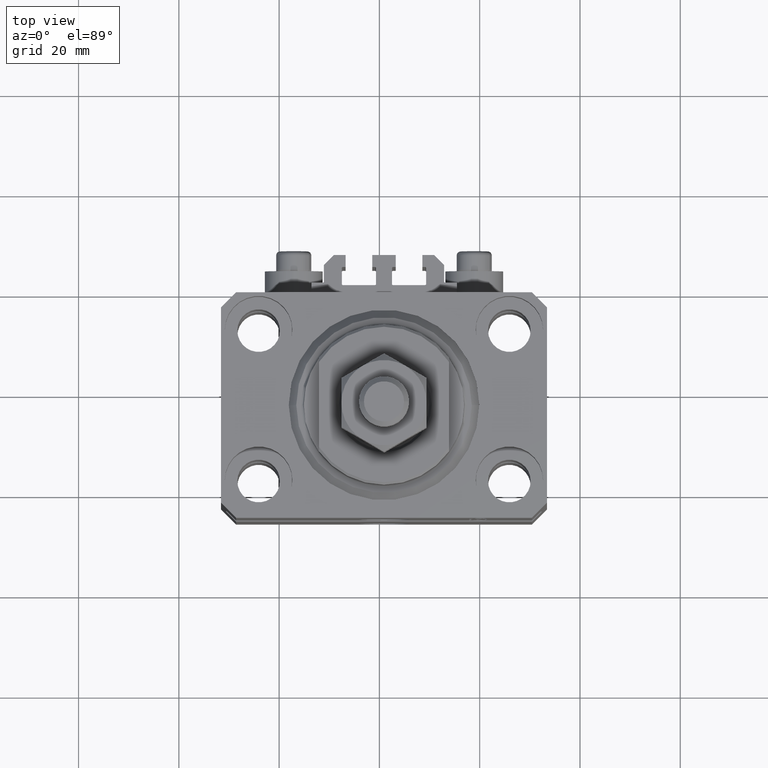
[diagram: clean part render]
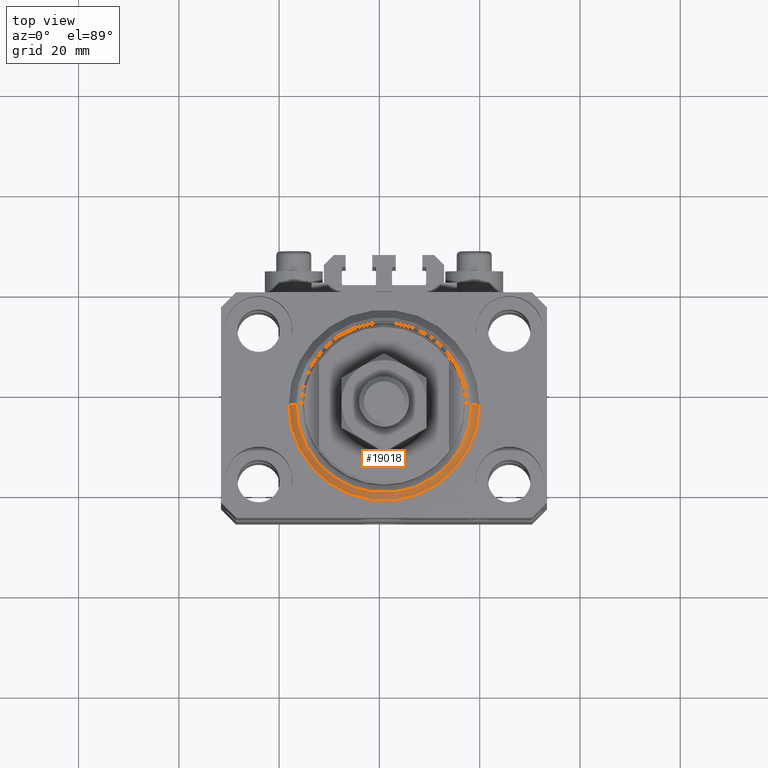
[diagram: same view with one face highlighted and labeled with its STEP entity id]
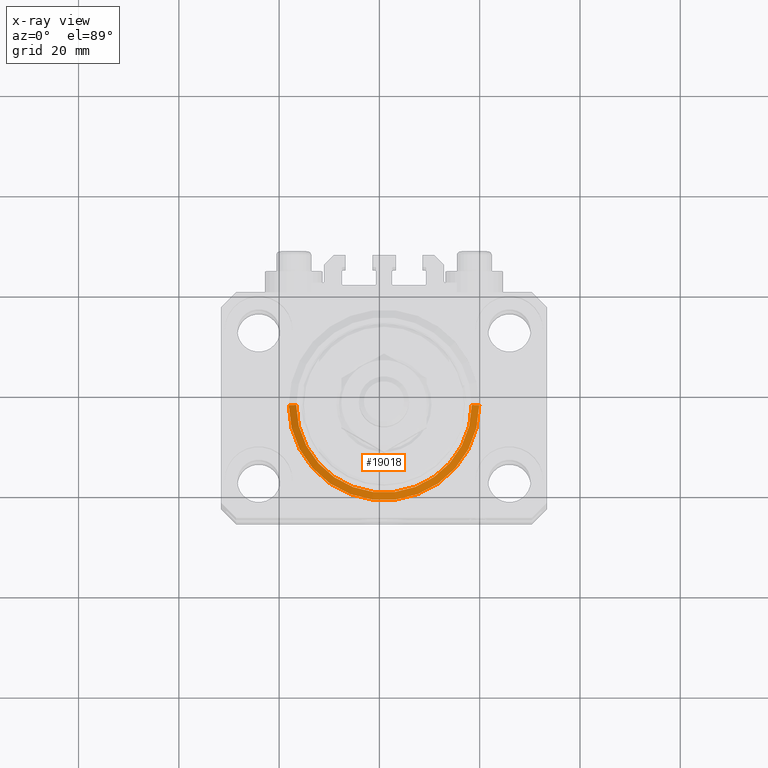
[diagram: x-ray of the same camera — body ghosted, the highlighted face saturated]
A machine part, top view. The second image highlights one B-rep face of the part: STEP entity #19018.
The next image is the same camera in x-ray: the body ghosted, the highlighted face saturated — about 0% of this face is hidden behind the body in this view.
In plain terms, the highlighted conical surface has half-angle 45 deg.
Its self-contained STEP definition (entity closure, byte-faithful):
#434 = ORIENTED_EDGE ( 'NONE', *, *, #7172, .F. ) ;
#441 = VERTEX_POINT ( 'NONE', #6182 ) ;
#732 = LINE ( 'NONE', #34868, #2771 ) ;
#1112 = AXIS2_PLACEMENT_3D ( 'NONE', #26524, #23761, #45707 ) ;
#1488 = ORIENTED_EDGE ( 'NONE', *, *, #23371, .F. ) ;
#1666 = CARTESIAN_POINT ( 'NONE',  ( -17.49999999999999645, 2.234980408443919215E-15, 0.000000000000000000 ) ) ;
#2550 = CARTESIAN_POINT ( 'NONE',  ( 19.00000000000000000, 2.326828918379970970E-15, 1.500000000000001332 ) ) ;
#2771 = VECTOR ( 'NONE', #26917, 1000.000000000000000 ) ;
#4719 = CONICAL_SURFACE ( 'NONE', #32596, 19.00000000000000000, 0.7853981633974492782 ) ;
#4908 = EDGE_CURVE ( 'NONE', #22768, #44443, #732, .T. ) ;
#6182 = CARTESIAN_POINT ( 'NONE',  ( -19.00000000000000000, 0.000000000000000000, 1.500000000000001332 ) ) ;
#7172 = EDGE_CURVE ( 'NONE', #48415, #441, #30949, .T. ) ;
#8442 = VECTOR ( 'NONE', #12256, 1000.000000000000000 ) ;
#12256 = DIRECTION ( 'NONE',  ( -0.7071067811865483499, 8.659560562354942719E-17, 0.7071067811865467956 ) ) ;
#13904 = CARTESIAN_POINT ( 'NONE',  ( 0.000000000000000000, 0.000000000000000000, 1.500000000000001332 ) ) ;
#14783 = EDGE_CURVE ( 'NONE', #22768, #48415, #43569, .T. ) ;
#17870 = FACE_OUTER_BOUND ( 'NONE', #40057, .T. ) ;
#19018 = ADVANCED_FACE ( 'NONE', ( #17870 ), #4719, .T. ) ;
#22768 = VERTEX_POINT ( 'NONE', #35378 ) ;
#23371 = EDGE_CURVE ( 'NONE', #441, #44443, #27383, .T. ) ;
#23761 = DIRECTION ( 'NONE',  ( -0.000000000000000000, -0.000000000000000000, 1.000000000000000000 ) ) ;
#24387 = DIRECTION ( 'NONE',  ( -0.000000000000000000, -0.000000000000000000, -1.000000000000000000 ) ) ;
#25602 = DIRECTION ( 'NONE',  ( 1.000000000000000000, 0.000000000000000000, 0.000000000000000000 ) ) ;
#26524 = CARTESIAN_POINT ( 'NONE',  ( 0.000000000000000000, 0.000000000000000000, 1.500000000000001332 ) ) ;
#26917 = DIRECTION ( 'NONE',  ( 0.7071067811865483499, 0.000000000000000000, 0.7071067811865467956 ) ) ;
#27383 = CIRCLE ( 'NONE', #1112, 19.00000000000000000 ) ;
#30949 = LINE ( 'NONE', #46379, #8442 ) ;
#31667 = AXIS2_PLACEMENT_3D ( 'NONE', #36340, #24387, #47292 ) ;
#32596 = AXIS2_PLACEMENT_3D ( 'NONE', #13904, #33568, #25602 ) ;
#33568 = DIRECTION ( 'NONE',  ( -0.000000000000000000, -0.000000000000000000, 1.000000000000000000 ) ) ;
#34868 = CARTESIAN_POINT ( 'NONE',  ( 19.00000000000000000, 0.000000000000000000, 1.500000000000001332 ) ) ;
#35378 = CARTESIAN_POINT ( 'NONE',  ( 17.49999999999999645, 0.000000000000000000, 0.000000000000000000 ) ) ;
#36340 = CARTESIAN_POINT ( 'NONE',  ( 0.000000000000000000, 0.000000000000000000, 0.000000000000000000 ) ) ;
#40057 = EDGE_LOOP ( 'NONE', ( #434, #48931, #46417, #1488 ) ) ;
#43569 = CIRCLE ( 'NONE', #31667, 17.49999999999999645 ) ;
#44443 = VERTEX_POINT ( 'NONE', #2550 ) ;
#45707 = DIRECTION ( 'NONE',  ( 1.000000000000000000, 0.000000000000000000, 0.000000000000000000 ) ) ;
#46379 = CARTESIAN_POINT ( 'NONE',  ( -19.00000000000000000, 2.326828918379970970E-15, 1.500000000000001332 ) ) ;
#46417 = ORIENTED_EDGE ( 'NONE', *, *, #4908, .T. ) ;
#47292 = DIRECTION ( 'NONE',  ( 1.000000000000000000, 0.000000000000000000, 0.000000000000000000 ) ) ;
#48415 = VERTEX_POINT ( 'NONE', #1666 ) ;
#48931 = ORIENTED_EDGE ( 'NONE', *, *, #14783, .F. ) ;